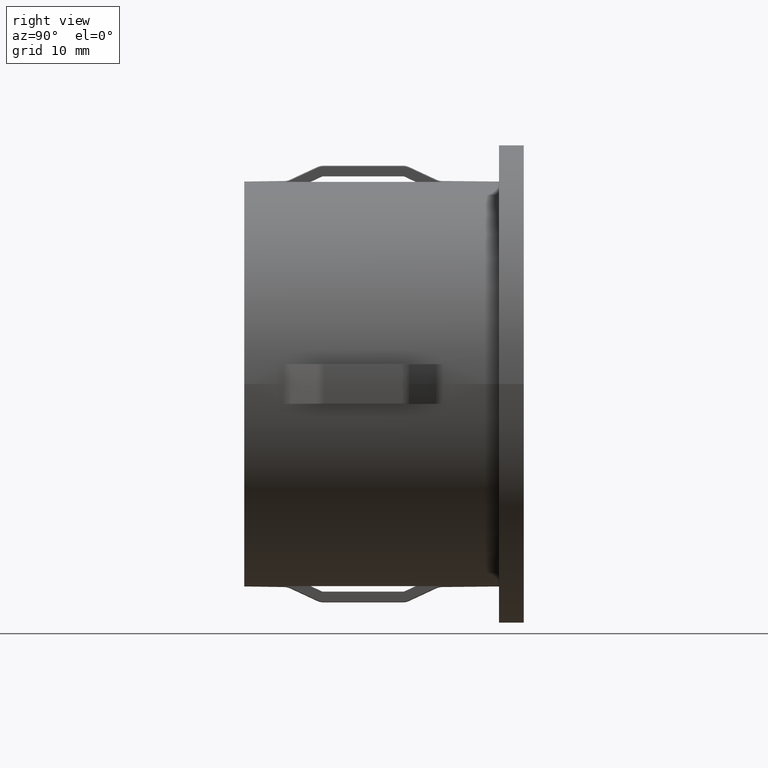
[diagram: clean part render]
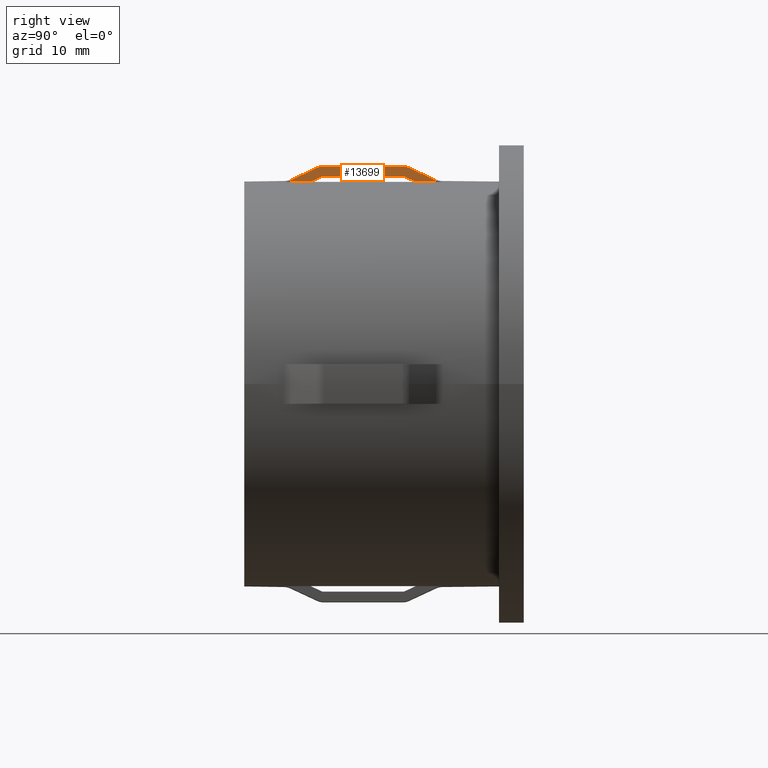
[diagram: same view with one face highlighted and labeled with its STEP entity id]
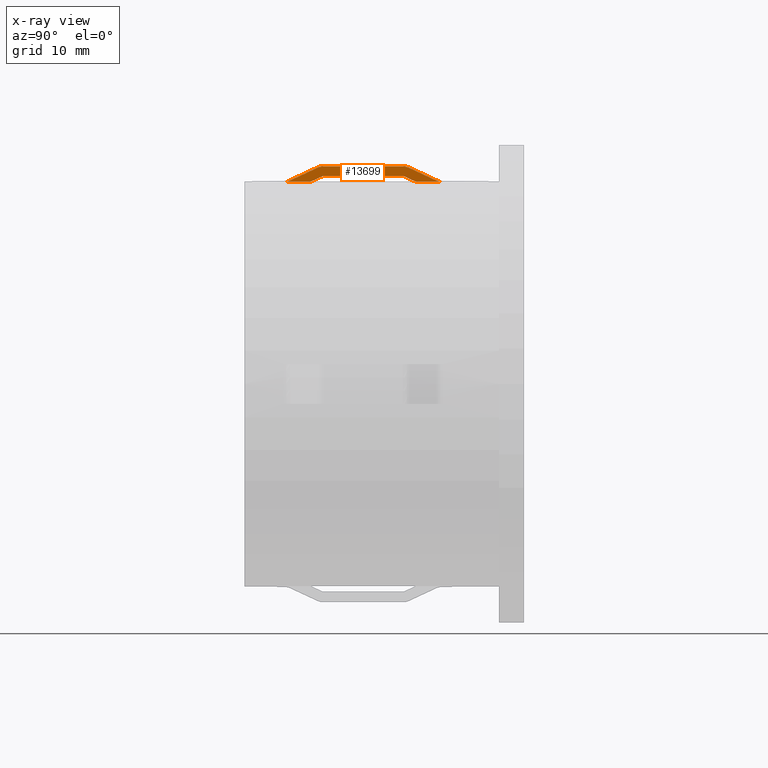
[diagram: x-ray of the same camera — body ghosted, the highlighted face saturated]
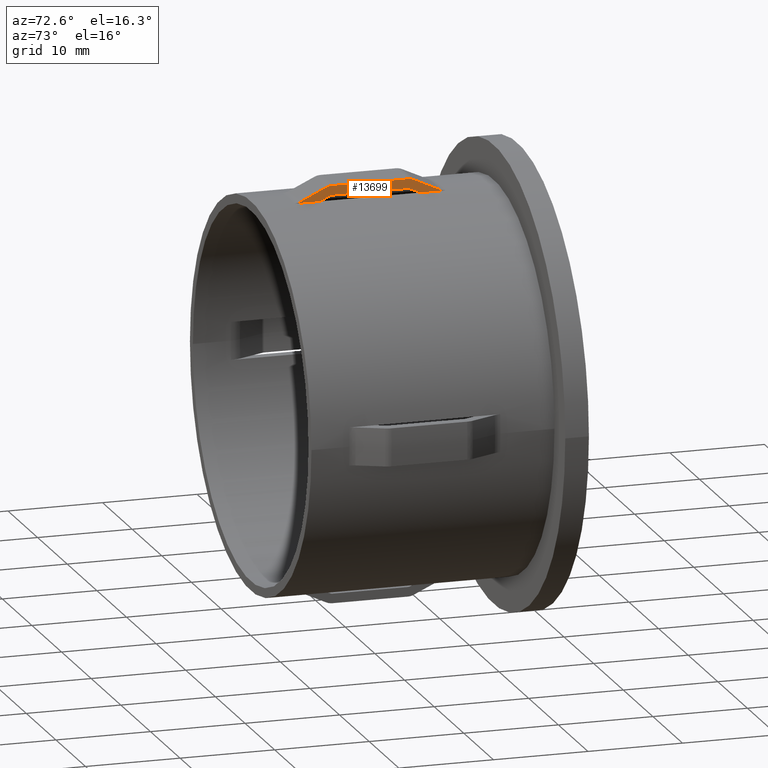
[diagram: same view with one face highlighted and labeled with its STEP entity id]
A machine part, right view. The second image highlights one B-rep face of the part: STEP entity #13699.
The next image is the same camera in x-ray: the body ghosted, the highlighted face saturated — about 0% of this face is hidden behind the body in this view.
A second angle (auxiliary view) of the same face is appended — the face is thin or edge-on in the first view.
In plain terms, the highlighted planar face has unit normal (-1, 0, 0).
Its self-contained STEP definition (entity closure, byte-faithful):
#26 = ORIENTED_EDGE ( 'NONE', *, *, #1836, .T. ) ;
#101 = CARTESIAN_POINT ( 'NONE',  ( 2.000000000000004900, 7.789385463445599500, 20.90803797569656600 ) ) ;
#130 = DIRECTION ( 'NONE',  ( -1.000000000000000000, 0.0000000000000000000, 8.691387039347421500E-017 ) ) ;
#146 = DIRECTION ( 'NONE',  ( -0.0000000000000000000, -1.000000000000000000, -0.0000000000000000000 ) ) ;
#197 = B_SPLINE_CURVE_WITH_KNOTS ( 'NONE', 3,
 ( #4257, #2163, #10910, #4155, #5410, #14037 ),
 .UNSPECIFIED., .F., .F.,
 ( 4, 2, 4 ),
 ( 0.002989753267437979300, 0.003097556160632709800, 0.003205359053827440400 ),
 .UNSPECIFIED. ) ;
#236 = CARTESIAN_POINT ( 'NONE',  ( 2.000000000000004900, 6.868105230636908600, 20.47816124199519200 ) ) ;
#370 = CARTESIAN_POINT ( 'NONE',  ( 2.000000000000004900, 16.14280256262461000, 20.93522216556196400 ) ) ;
#653 = CARTESIAN_POINT ( 'NONE',  ( 2.000000000000004900, 20.00000000000000000, 20.40220576310316900 ) ) ;
#932 = CARTESIAN_POINT ( 'NONE',  ( 2.000000000000004900, 4.631843609663175900, 20.54243878174399600 ) ) ;
#969 = CARTESIAN_POINT ( 'NONE',  ( 2.000000000000004900, 19.57102105820404600, 20.46108116583520300 ) ) ;
#1021 = CARTESIAN_POINT ( 'NONE',  ( 2.000000000000004900, 15.99999999999999600, 20.95477272604024000 ) ) ;
#1025 = CARTESIAN_POINT ( 'NONE',  ( 2.000000000000004900, 5.791666624738636100, 21.08362248158814400 ) ) ;
#1080 = EDGE_CURVE ( 'NONE', #5200, #1506, #10271, .T. ) ;
#1125 = LINE ( 'NONE', #6023, #10714 ) ;
#1168 = VERTEX_POINT ( 'NONE', #8988 ) ;
#1171 = CARTESIAN_POINT ( 'NONE',  ( 2.000000000000004900, 16.63184360966317900, 21.81895976167198700 ) ) ;
#1425 = ORIENTED_EDGE ( 'NONE', *, *, #11305, .F. ) ;
#1506 = VERTEX_POINT ( 'NONE', #3210 ) ;
#1530 = ORIENTED_EDGE ( 'NONE', *, *, #1890, .F. ) ;
#1711 = CARTESIAN_POINT ( 'NONE',  ( 2.000000000000004000, 16.07212543806543400, 20.95084691996618200 ) ) ;
#1836 = EDGE_CURVE ( 'NONE', #12536, #13952, #8990, .T. ) ;
#1890 = EDGE_CURVE ( 'NONE', #2718, #13505, #1125, .T. ) ;
#1908 = VERTEX_POINT ( 'NONE', #7125 ) ;
#2133 = CARTESIAN_POINT ( 'NONE',  ( 2.000000000000004900, 5.003471096762878800, 20.71584805443751500 ) ) ;
#2140 = B_SPLINE_CURVE_WITH_KNOTS ( 'NONE', 3,
 ( #3149, #10794, #370, #1711, #12333, #1021 ),
 .UNSPECIFIED., .F., .F.,
 ( 4, 2, 4 ),
 ( 0.003062314721154924800, 0.003170406727668596600, 0.003278498734182268300 ),
 .UNSPECIFIED. ) ;
#2163 = CARTESIAN_POINT ( 'NONE',  ( 2.000000000000004000, 7.963932141285868100, 20.95477272604025000 ) ) ;
#2237 = CARTESIAN_POINT ( 'NONE',  ( 2.000000000000004900, 16.57012973044801600, 20.74029511923067700 ) ) ;
#2336 = CARTESIAN_POINT ( 'NONE',  ( 2.000000000000004900, 17.05315212496557500, 20.51490939557035300 ) ) ;
#2377 = EDGE_CURVE ( 'NONE', #3568, #7848, #2658, .T. ) ;
#2419 = CARTESIAN_POINT ( 'NONE',  ( 2.000000000000004900, 17.02217432928180300, 21.63690678432523700 ) ) ;
#2429 = CARTESIAN_POINT ( 'NONE',  ( 2.000000000000004900, 15.99999999999999300, 21.95910972694475700 ) ) ;
#2658 = B_SPLINE_CURVE_WITH_KNOTS ( 'NONE', 3,
 ( #932, #7543, #8723, #2133, #1025, #10880, #3135 ),
 .UNSPECIFIED., .F., .F.,
 ( 4, 3, 4 ),
 ( 0.005748589872255116400, 0.006158684684933026300, 0.008768012514493477700 ),
 .UNSPECIFIED. ) ;
#2718 = VERTEX_POINT ( 'NONE', #4431 ) ;
#2781 = DIRECTION ( 'NONE',  ( 1.714505518806297100E-016, -1.000000000000000000, 0.0000000000000000000 ) ) ;
#2896 = ORIENTED_EDGE ( 'NONE', *, *, #7114, .F. ) ;
#2927 = CARTESIAN_POINT ( 'NONE',  ( 2.000000000000004000, 16.10905611293586800, 21.95910972694476000 ) ) ;
#2944 = ORIENTED_EDGE ( 'NONE', *, *, #11737, .F. ) ;
#3135 = CARTESIAN_POINT ( 'NONE',  ( 2.000000000000004900, 7.368156390336815200, 21.81895976167198700 ) ) ;
#3145 = CARTESIAN_POINT ( 'NONE',  ( 2.000000000000004900, 3.999999999999989800, 20.40220576310316900 ) ) ;
#3149 = CARTESIAN_POINT ( 'NONE',  ( 2.000000000000004900, 16.21061453655438800, 20.90803797569656600 ) ) ;
#3177 = CARTESIAN_POINT ( 'NONE',  ( 2.000000000000004900, 19.89111389934138800, 20.40220576310316500 ) ) ;
#3191 = B_SPLINE_CURVE_WITH_KNOTS ( 'NONE', 3,
 ( #7536, #11820, #969, #6373, #3177, #5270 ),
 .UNSPECIFIED., .F., .F.,
 ( 4, 2, 4 ),
 ( 0.009318026355951337900, 0.009642187708504348900, 0.009966349061057361600 ),
 .UNSPECIFIED. ) ;
#3210 = CARTESIAN_POINT ( 'NONE',  ( 2.000000000000004900, 6.705341703911488000, 20.40220576310316900 ) ) ;
#3285 = CARTESIAN_POINT ( 'NONE',  ( 2.000000000000004900, 17.80419987880581800, 21.27215170691162500 ) ) ;
#3382 = EDGE_CURVE ( 'NONE', #13505, #5200, #197, .T. ) ;
#3568 = VERTEX_POINT ( 'NONE', #11098 ) ;
#3825 = EDGE_CURVE ( 'NONE', #12001, #11445, #4519, .T. ) ;
#3971 = VERTEX_POINT ( 'NONE', #3145 ) ;
#3973 = CARTESIAN_POINT ( 'NONE',  ( 2.000000000000004900, 7.999999999999992900, 21.95910972694475700 ) ) ;
#3988 = LINE ( 'NONE', #10965, #10158 ) ;
#4004 = CARTESIAN_POINT ( 'NONE',  ( 2.000000000000004900, 3.999999999999989800, 20.40220576310316900 ) ) ;
#4021 = CARTESIAN_POINT ( 'NONE',  ( 2.000000000000004900, 16.63184360966317900, 21.81895976167198700 ) ) ;
#4155 = CARTESIAN_POINT ( 'NONE',  ( 2.000000000000004000, 7.856611350394518700, 20.93505295182582100 ) ) ;
#4217 = ORIENTED_EDGE ( 'NONE', *, *, #9209, .F. ) ;
#4257 = CARTESIAN_POINT ( 'NONE',  ( 2.000000000000008400, 7.999999999999996400, 20.95477272604024300 ) ) ;
#4370 = ORIENTED_EDGE ( 'NONE', *, *, #2377, .F. ) ;
#4431 = CARTESIAN_POINT ( 'NONE',  ( 2.000000000000004900, 15.99999999999999600, 20.95477272604024000 ) ) ;
#4484 = PLANE ( 'NONE',  #12488 ) ;
#4519 = LINE ( 'NONE', #653, #10841 ) ;
#5163 = CARTESIAN_POINT ( 'NONE',  ( 2.000000000000004900, 7.571389916535309800, 21.90038738601409200 ) ) ;
#5164 = CARTESIAN_POINT ( 'NONE',  ( 2.000000000000004000, 16.43039489840985100, 21.89987049338016700 ) ) ;
#5200 = VERTEX_POINT ( 'NONE', #8939 ) ;
#5270 = CARTESIAN_POINT ( 'NONE',  ( 2.000000000000004900, 20.00000000000000000, 20.40220576310316900 ) ) ;
#5410 = CARTESIAN_POINT ( 'NONE',  ( 2.000000000000004900, 7.821959385406407800, 20.92323578227850700 ) ) ;
#5445 = ORIENTED_EDGE ( 'NONE', *, *, #6445, .F. ) ;
#5458 = B_SPLINE_CURVE_WITH_KNOTS ( 'NONE', 3,
 ( #4004, #13734, #8267, #10556, #7120, #13780 ),
 .UNSPECIFIED., .F., .F.,
 ( 4, 2, 4 ),
 ( 0.009313498026246010500, 0.009637648220901146700, 0.009961798415556283000 ),
 .UNSPECIFIED. ) ;
#5510 = FACE_OUTER_BOUND ( 'NONE', #10855, .T. ) ;
#5575 = CARTESIAN_POINT ( 'NONE',  ( 2.000000000000004900, 18.58619558254779500, 20.90733263163637900 ) ) ;
#5577 = CARTESIAN_POINT ( 'NONE',  ( 2.000000000000004900, 16.45029212435912300, 20.79621110187691400 ) ) ;
#5699 = CARTESIAN_POINT ( 'NONE',  ( 2.000000000000004900, 6.705341703911488000, 20.40220576310316900 ) ) ;
#6023 = CARTESIAN_POINT ( 'NONE',  ( 2.000000000000004900, 28.19999999999999900, 20.95477272604024300 ) ) ;
#6043 = CARTESIAN_POINT ( 'NONE',  ( 2.000000000000004900, 16.63184360966317900, 21.81895976167198700 ) ) ;
#6057 = B_SPLINE_CURVE_WITH_KNOTS ( 'NONE', 3,
 ( #1171, #13288, #8949, #2419, #3285, #5575, #12024 ),
 .UNSPECIFIED., .F., .F.,
 ( 4, 3, 4 ),
 ( 0.005727985899885308300, 0.006158684579294246500, 0.008747408597582669000 ),
 .UNSPECIFIED. ) ;
#6177 = CARTESIAN_POINT ( 'NONE',  ( 2.000000000000004900, 7.368156390336815200, 21.81895976167198700 ) ) ;
#6179 = CARTESIAN_POINT ( 'NONE',  ( 2.000000000000004900, 15.99999999999999300, 21.95910972694475700 ) ) ;
#6357 = VERTEX_POINT ( 'NONE', #6043 ) ;
#6373 = CARTESIAN_POINT ( 'NONE',  ( 2.000000000000004000, 19.78199866218136200, 20.41426266762649900 ) ) ;
#6445 = EDGE_CURVE ( 'NONE', #1168, #12001, #3191, .T. ) ;
#6657 = ORIENTED_EDGE ( 'NONE', *, *, #3382, .F. ) ;
#6684 = B_SPLINE_CURVE_WITH_KNOTS ( 'NONE', 3,
 ( #6177, #13848, #5163, #7378, #9558, #3973 ),
 .UNSPECIFIED., .F., .F.,
 ( 4, 2, 4 ),
 ( 0.009272772057767128200, 0.009596935487198244400, 0.009921098916629358900 ),
 .UNSPECIFIED. ) ;
#6717 = CARTESIAN_POINT ( 'NONE',  ( 2.000000000000004900, 16.81164254834684600, 20.62760573085573100 ) ) ;
#6792 = CARTESIAN_POINT ( 'NONE',  ( 2.000000000000004900, 6.759596041550063100, 20.42752462307488800 ) ) ;
#7114 = EDGE_CURVE ( 'NONE', #1908, #2718, #2140, .T. ) ;
#7120 = CARTESIAN_POINT ( 'NONE',  ( 2.000000000000004900, 4.533129863748481400, 20.49637504245511400 ) ) ;
#7125 = CARTESIAN_POINT ( 'NONE',  ( 2.000000000000004900, 16.21061453655438800, 20.90803797569656600 ) ) ;
#7293 = CARTESIAN_POINT ( 'NONE',  ( 2.000000000000004900, 7.368156390336815200, 21.81895976167198700 ) ) ;
#7378 = CARTESIAN_POINT ( 'NONE',  ( 2.000000000000004000, 7.782531567513499800, 21.94714473153199200 ) ) ;
#7536 = CARTESIAN_POINT ( 'NONE',  ( 2.000000000000004900, 19.36815639033681400, 20.54243878174399300 ) ) ;
#7543 = CARTESIAN_POINT ( 'NONE',  ( 2.000000000000004900, 4.755718568135789000, 20.60024373827389300 ) ) ;
#7800 = DIRECTION ( 'NONE',  ( 8.691387039347421500E-017, 0.0000000000000000000, 1.000000000000000000 ) ) ;
#7848 = VERTEX_POINT ( 'NONE', #7293 ) ;
#7998 = CARTESIAN_POINT ( 'NONE',  ( 2.000000000000004900, 17.29465829608850000, 20.40220576310316900 ) ) ;
#8212 = ORIENTED_EDGE ( 'NONE', *, *, #1080, .F. ) ;
#8267 = CARTESIAN_POINT ( 'NONE',  ( 2.000000000000004900, 4.218282003408679900, 20.41430413720537000 ) ) ;
#8392 = ORIENTED_EDGE ( 'NONE', *, *, #12294, .F. ) ;
#8723 = CARTESIAN_POINT ( 'NONE',  ( 2.000000000000004900, 4.879594404472019400, 20.65804681359365000 ) ) ;
#8771 = CARTESIAN_POINT ( 'NONE',  ( 2.000000000000004900, 7.999999999999992900, 21.95910972694475700 ) ) ;
#8805 = CARTESIAN_POINT ( 'NONE',  ( 2.000000000000004900, 6.813850551095185000, 20.45284311468109100 ) ) ;
#8866 = B_SPLINE_CURVE_WITH_KNOTS ( 'NONE', 3,
 ( #13157, #2336, #6717, #2237, #5577, #12919, #8955 ),
 .UNSPECIFIED., .F., .F.,
 ( 4, 3, 4 ),
 ( 0.004445768728191113400, 0.005245297360551531700, 0.005642019976791062800 ),
 .UNSPECIFIED. ) ;
#8939 = CARTESIAN_POINT ( 'NONE',  ( 2.000000000000004900, 7.789385463445599500, 20.90803797569656600 ) ) ;
#8949 = CARTESIAN_POINT ( 'NONE',  ( 2.000000000000004900, 16.89206491108876000, 21.69759287179914500 ) ) ;
#8955 = CARTESIAN_POINT ( 'NONE',  ( 2.000000000000004900, 16.21061453655438800, 20.90803797569656600 ) ) ;
#8988 = CARTESIAN_POINT ( 'NONE',  ( 2.000000000000004900, 19.36815639033681400, 20.54243878174399300 ) ) ;
#8990 = LINE ( 'NONE', #11332, #13755 ) ;
#9209 = EDGE_CURVE ( 'NONE', #7848, #13952, #6684, .T. ) ;
#9392 = DIRECTION ( 'NONE',  ( -0.0000000000000000000, -1.000000000000000000, -0.0000000000000000000 ) ) ;
#9435 = ORIENTED_EDGE ( 'NONE', *, *, #11909, .F. ) ;
#9465 = B_SPLINE_CURVE_WITH_KNOTS ( 'NONE', 3,
 ( #6179, #2927, #10573, #5164, #11623, #4021 ),
 .UNSPECIFIED., .F., .F.,
 ( 4, 2, 4 ),
 ( 0.009222230523490235200, 0.009546486176123837600, 0.009870741828757438300 ),
 .UNSPECIFIED. ) ;
#9558 = CARTESIAN_POINT ( 'NONE',  ( 2.000000000000004900, 7.890609340575068100, 21.95910972694476400 ) ) ;
#9766 = CARTESIAN_POINT ( 'NONE',  ( 2.000000000000004900, 20.00000000000000000, 20.40220576310316900 ) ) ;
#10006 = CARTESIAN_POINT ( 'NONE',  ( 2.000000000000004900, 7.482286828135269000, 20.76475692815689600 ) ) ;
#10124 = ORIENTED_EDGE ( 'NONE', *, *, #13969, .F. ) ;
#10158 = VECTOR ( 'NONE', #146, 1000.000000000000000 ) ;
#10271 = B_SPLINE_CURVE_WITH_KNOTS ( 'NONE', 3,
 ( #101, #10006, #11060, #236, #8805, #6792, #5699 ),
 .UNSPECIFIED., .F., .F.,
 ( 4, 3, 4 ),
 ( 0.004228660097551589600, 0.005245297325554951400, 0.005424911354766932100 ),
 .UNSPECIFIED. ) ;
#10466 = CARTESIAN_POINT ( 'NONE',  ( 2.000000000000008400, 7.999999999999996400, 20.95477272604024300 ) ) ;
#10556 = CARTESIAN_POINT ( 'NONE',  ( 2.000000000000004000, 4.429247492289508900, 20.46116162824431600 ) ) ;
#10573 = CARTESIAN_POINT ( 'NONE',  ( 2.000000000000004900, 16.21885837541287900, 21.94695676178372800 ) ) ;
#10714 = VECTOR ( 'NONE', #2781, 1000.000000000000000 ) ;
#10794 = CARTESIAN_POINT ( 'NONE',  ( 2.000000000000004000, 16.17765516922826300, 20.92341561705912400 ) ) ;
#10841 = VECTOR ( 'NONE', #9392, 1000.000000000000000 ) ;
#10855 = EDGE_LOOP ( 'NONE', ( #2944, #9435, #26, #4217, #4370, #8392, #1425, #8212, #6657, #1530, #2896, #10124, #12234, #5445 ) ) ;
#10880 = CARTESIAN_POINT ( 'NONE',  ( 2.000000000000004900, 6.579896722732108600, 21.45132282661965600 ) ) ;
#10910 = CARTESIAN_POINT ( 'NONE',  ( 2.000000000000004900, 7.927430270091183400, 20.95078777288819800 ) ) ;
#10965 = CARTESIAN_POINT ( 'NONE',  ( 2.000000000000004900, 20.00000000000000000, 20.40220576310316900 ) ) ;
#11060 = CARTESIAN_POINT ( 'NONE',  ( 2.000000000000004900, 7.175193307291408500, 20.62146491804773900 ) ) ;
#11098 = CARTESIAN_POINT ( 'NONE',  ( 2.000000000000004900, 4.631843609663175900, 20.54243878174399600 ) ) ;
#11305 = EDGE_CURVE ( 'NONE', #1506, #3971, #3988, .T. ) ;
#11332 = CARTESIAN_POINT ( 'NONE',  ( 2.000000000000004900, 20.00000000000000000, 21.95910972694475700 ) ) ;
#11445 = VERTEX_POINT ( 'NONE', #7998 ) ;
#11623 = CARTESIAN_POINT ( 'NONE',  ( 2.000000000000004900, 16.53282673221935500, 21.86514030704039200 ) ) ;
#11737 = EDGE_CURVE ( 'NONE', #6357, #1168, #6057, .T. ) ;
#11820 = CARTESIAN_POINT ( 'NONE',  ( 2.000000000000004000, 19.46705246527877600, 20.49628996051745800 ) ) ;
#11909 = EDGE_CURVE ( 'NONE', #12536, #6357, #9465, .T. ) ;
#12001 = VERTEX_POINT ( 'NONE', #9766 ) ;
#12024 = CARTESIAN_POINT ( 'NONE',  ( 2.000000000000004900, 19.36815639033681400, 20.54243878174399300 ) ) ;
#12132 = CARTESIAN_POINT ( 'NONE',  ( 2.000000000000003100, 20.00000000000000000, -1.738277407869486800E-016 ) ) ;
#12234 = ORIENTED_EDGE ( 'NONE', *, *, #3825, .F. ) ;
#12294 = EDGE_CURVE ( 'NONE', #3971, #3568, #5458, .T. ) ;
#12326 = DIRECTION ( 'NONE',  ( -0.0000000000000000000, -1.000000000000000000, -0.0000000000000000000 ) ) ;
#12333 = CARTESIAN_POINT ( 'NONE',  ( 2.000000000000004900, 16.03630572369430900, 20.95477272604024700 ) ) ;
#12488 = AXIS2_PLACEMENT_3D ( 'NONE', #12132, #130, #7800 ) ;
#12536 = VERTEX_POINT ( 'NONE', #2429 ) ;
#12919 = CARTESIAN_POINT ( 'NONE',  ( 2.000000000000004900, 16.33045372002804300, 20.85212537378268000 ) ) ;
#13157 = CARTESIAN_POINT ( 'NONE',  ( 2.000000000000004900, 17.29465829608850000, 20.40220576310316900 ) ) ;
#13288 = CARTESIAN_POINT ( 'NONE',  ( 2.000000000000004900, 16.76195466434664600, 21.75827718291515800 ) ) ;
#13505 = VERTEX_POINT ( 'NONE', #10466 ) ;
#13699 = ADVANCED_FACE ( 'NONE', ( #5510 ), #4484, .F. ) ;
#13734 = CARTESIAN_POINT ( 'NONE',  ( 2.000000000000004000, 4.109128990522856700, 20.40220576310316500 ) ) ;
#13755 = VECTOR ( 'NONE', #12326, 1000.000000000000000 ) ;
#13780 = CARTESIAN_POINT ( 'NONE',  ( 2.000000000000004900, 4.631843609663175900, 20.54243878174399600 ) ) ;
#13848 = CARTESIAN_POINT ( 'NONE',  ( 2.000000000000004000, 7.466950919642115100, 21.86503660594857500 ) ) ;
#13952 = VERTEX_POINT ( 'NONE', #8771 ) ;
#13969 = EDGE_CURVE ( 'NONE', #11445, #1908, #8866, .T. ) ;
#14037 = CARTESIAN_POINT ( 'NONE',  ( 2.000000000000004900, 7.789385463445599500, 20.90803797569656600 ) ) ;